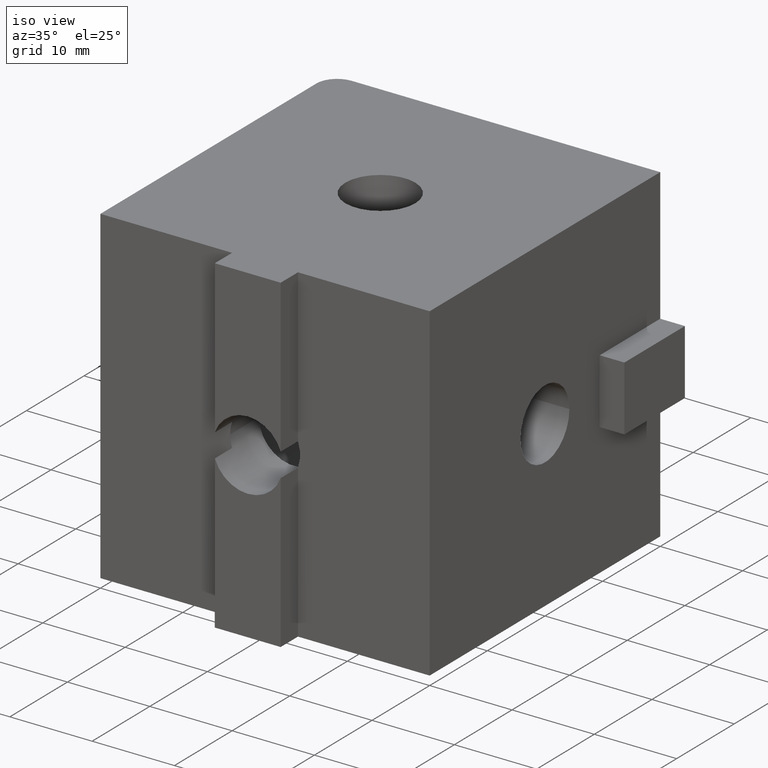
[diagram: clean part render]
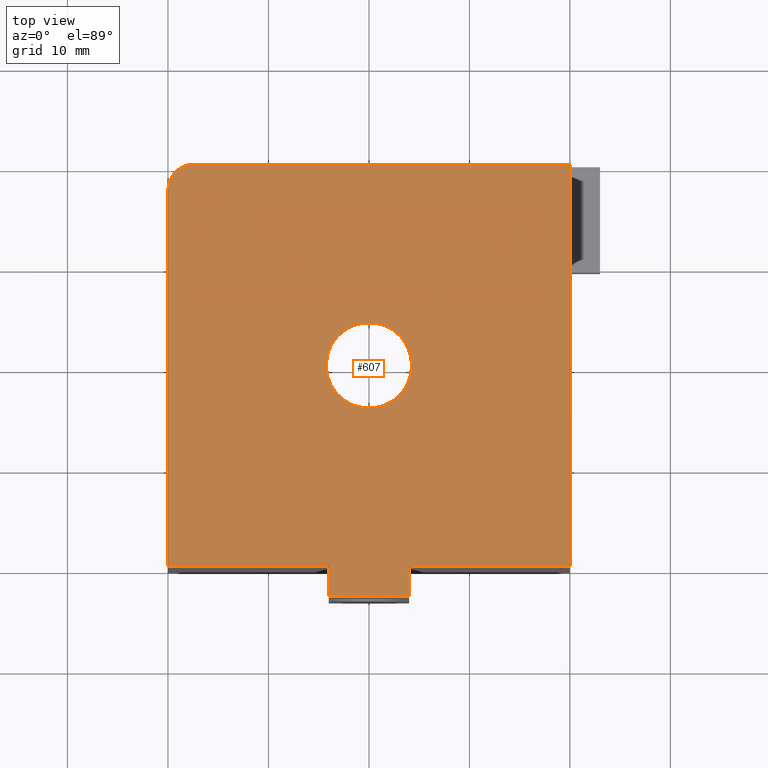
[diagram: tour spotlight — one face highlighted and labeled with its STEP entity id]
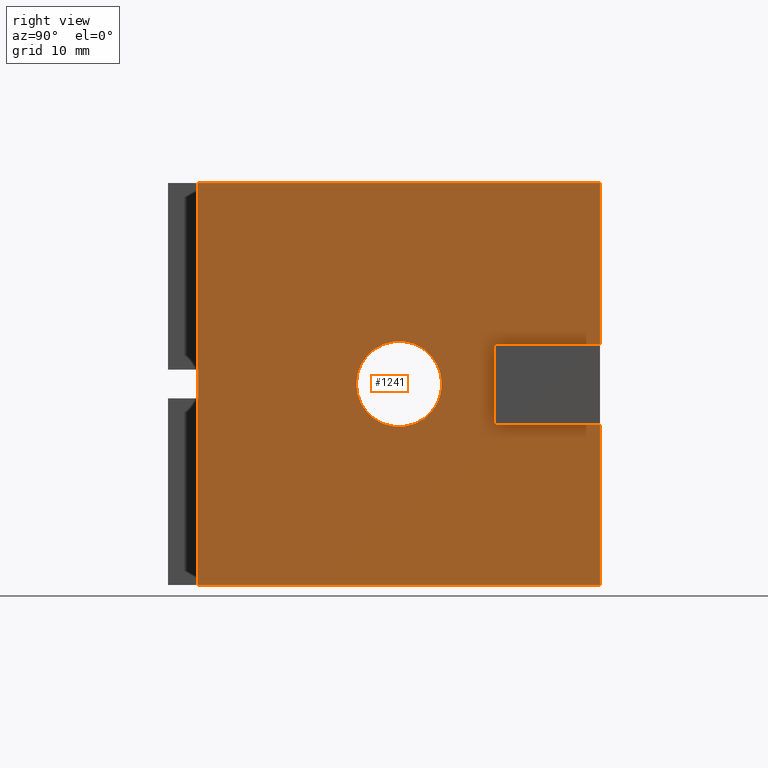
[diagram: tour spotlight — one face highlighted and labeled with its STEP entity id]
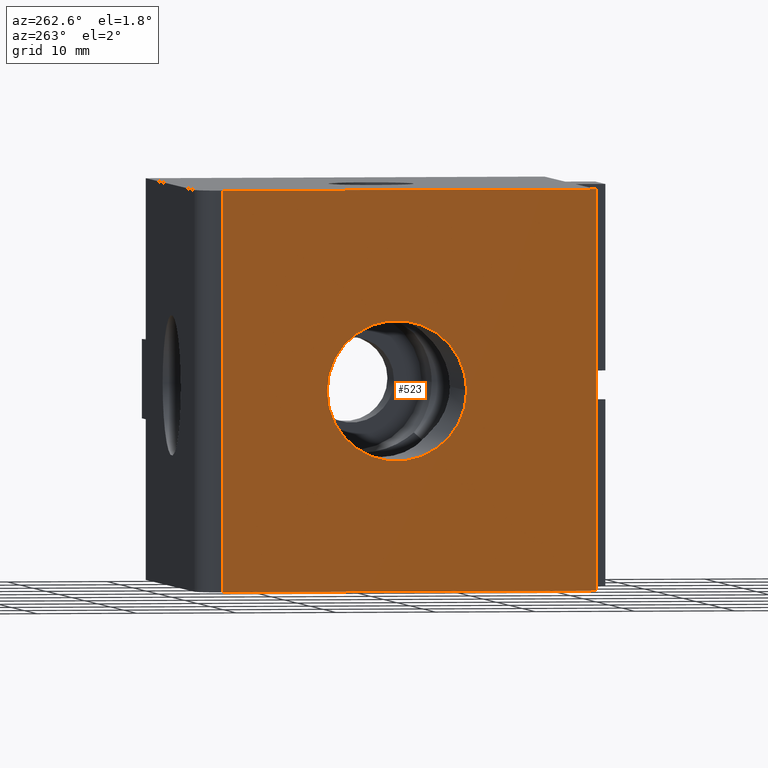
[diagram: tour spotlight — one face highlighted and labeled with its STEP entity id]
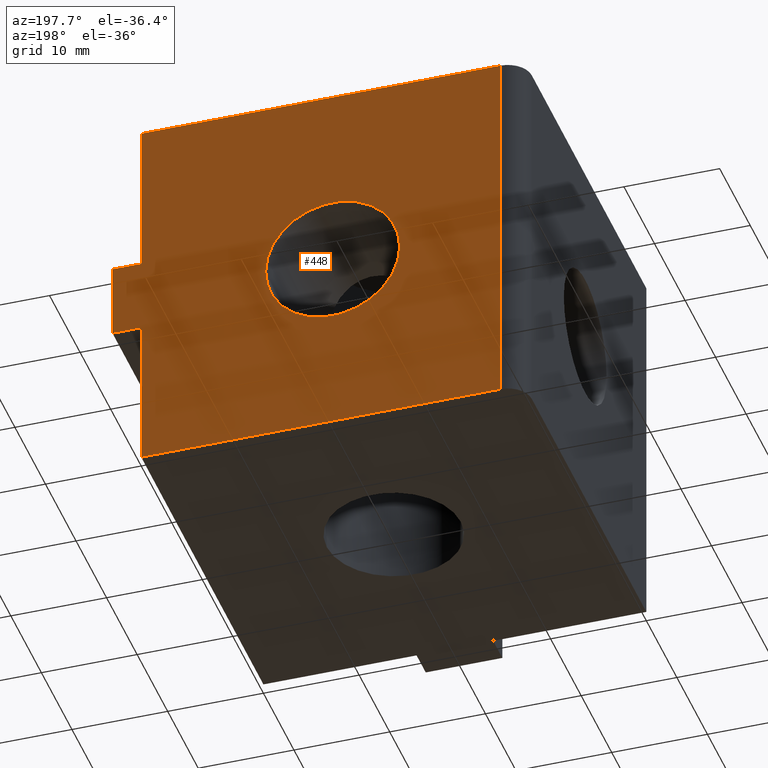
[diagram: tour spotlight — one face highlighted and labeled with its STEP entity id]
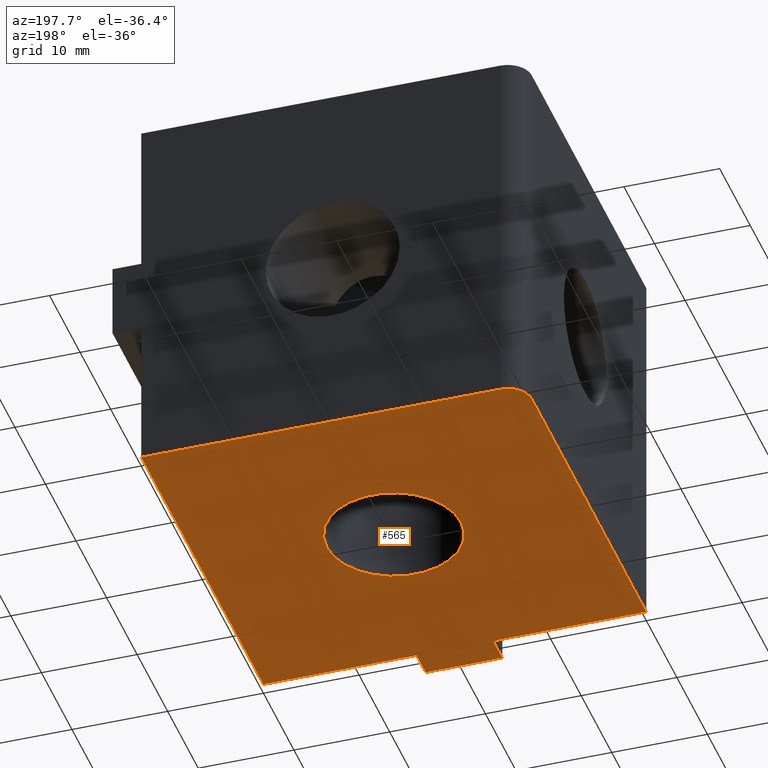
[diagram: tour spotlight — one face highlighted and labeled with its STEP entity id]
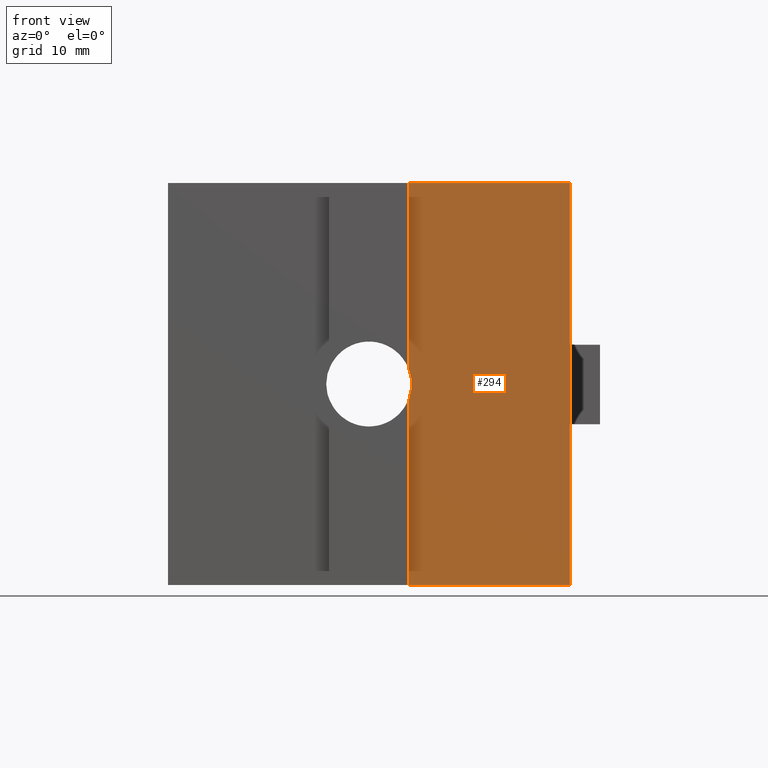
[diagram: tour spotlight — one face highlighted and labeled with its STEP entity id]
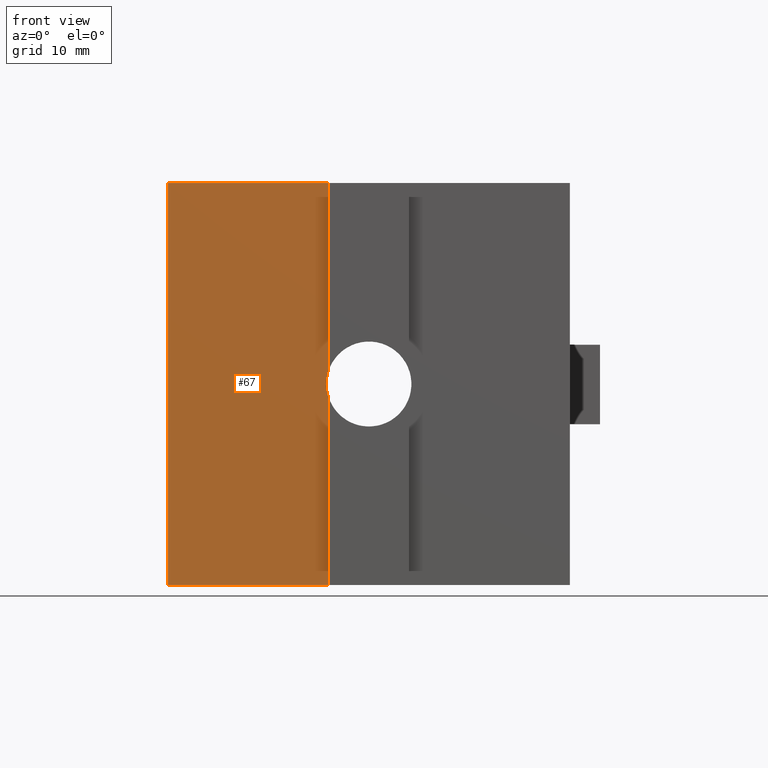
[diagram: tour spotlight — one face highlighted and labeled with its STEP entity id]
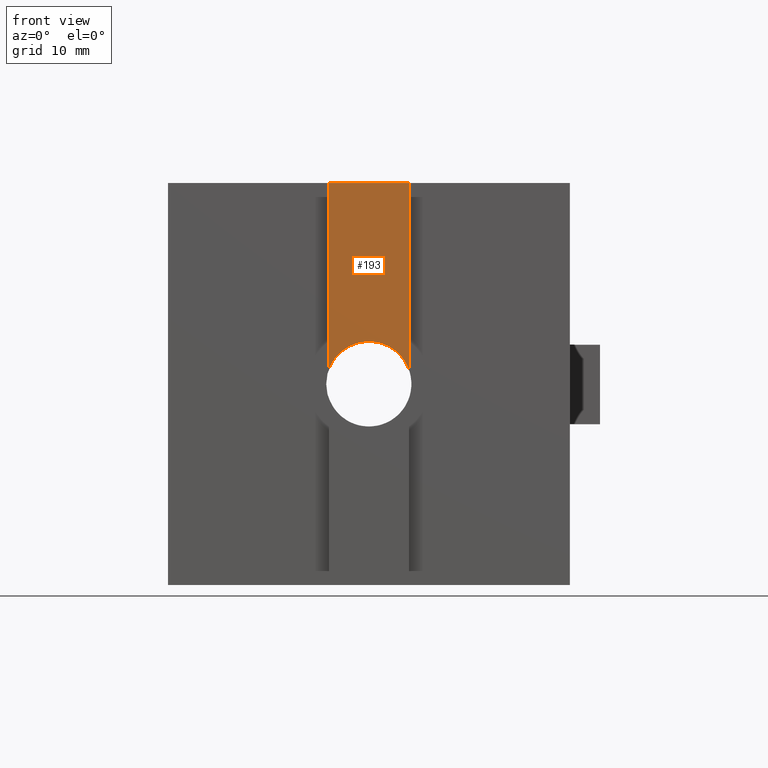
[diagram: tour spotlight — one face highlighted and labeled with its STEP entity id]
A machine part: a face-by-face anatomy tour. The part has 30 B-rep faces; the first image is the clean iso view, then the 8 largest visible faces are spotlighted one at a time (largest first), each with its STEP entity span.

Face 1 — top view, entity #607. In plain terms, the highlighted planar face has unit normal (0, 0, 1).
Definition (entity closure, byte-faithful):
#43=CARTESIAN_POINT('',(-3.999999111984067,-20.0,39.999989209840351));
#44=VERTEX_POINT('',#43);
#51=CARTESIAN_POINT('',(-19.999995559920137,-20.000000000000057,39.999989209840351));
#52=VERTEX_POINT('',#51);
#53=CARTESIAN_POINT('',(-19.999995559920137,-20.000000000000057,39.999989209840351));
#54=DIRECTION('',(1.0,0.0,0.0));
#55=VECTOR('',#54,15.999996447936070);
#56=LINE('',#53,#55);
#57=EDGE_CURVE('',#52,#44,#56,.T.);
#113=CARTESIAN_POINT('',(-3.999999111984067,-22.999999333988058,39.999989209840351));
#114=VERTEX_POINT('',#113);
#121=CARTESIAN_POINT('',(-3.999999111984067,-20.0,39.999989209840351));
#122=DIRECTION('',(0.0,-1.0,0.0));
#123=VECTOR('',#122,2.999999333988058);
#124=LINE('',#121,#123);
#125=EDGE_CURVE('',#44,#114,#124,.T.);
#177=CARTESIAN_POINT('',(3.999999111983840,-22.999999333988058,39.999989209840351));
#178=VERTEX_POINT('',#177);
#185=CARTESIAN_POINT('',(-3.999999111984067,-22.999999333988058,39.999989209840351));
#186=DIRECTION('',(1.0,0.0,0.0));
#187=VECTOR('',#186,7.999998223967907);
#188=LINE('',#185,#187);
#189=EDGE_CURVE('',#114,#178,#188,.T.);
#239=CARTESIAN_POINT('',(3.999999111983840,-20.000000000000057,39.999989209840351));
#240=VERTEX_POINT('',#239);
#247=CARTESIAN_POINT('',(3.999999111983840,-22.999999333988058,39.999989209840351));
#248=DIRECTION('',(0.0,1.0,0.0));
#249=VECTOR('',#248,2.999999333988001);
#250=LINE('',#247,#249);
#251=EDGE_CURVE('',#178,#240,#250,.T.);
#277=CARTESIAN_POINT('',(19.999993649920242,-20.000000000000057,39.999989209840351));
#278=VERTEX_POINT('',#277);
#285=CARTESIAN_POINT('',(3.999999111983840,-20.000000000000057,39.999989209840351));
#286=DIRECTION('',(1.0,0.0,0.0));
#287=VECTOR('',#286,15.999994537936402);
#288=LINE('',#285,#287);
#289=EDGE_CURVE('',#240,#278,#288,.T.);
#373=CARTESIAN_POINT('',(-17.499996114930269,19.999991119839819,39.999989209840351));
#374=VERTEX_POINT('',#373);
#381=CARTESIAN_POINT('',(19.999993649920242,19.999991119839819,39.999989209840351));
#382=VERTEX_POINT('',#381);
#383=CARTESIAN_POINT('',(19.999993649920242,19.999991119839819,39.999989209840351));
#384=DIRECTION('',(-1.0,0.0,0.0));
#385=VECTOR('',#384,37.499989764850511);
#386=LINE('',#383,#385);
#387=EDGE_CURVE('',#382,#374,#386,.T.);
#463=CARTESIAN_POINT('',(-19.999995559920137,17.499991674849952,39.999989209840351));
#464=VERTEX_POINT('',#463);
#471=CARTESIAN_POINT('',(-17.499996114930269,17.499991674849952,39.999989209840351));
#472=DIRECTION('',(0.0,0.0,1.0));
#473=DIRECTION('',(0.0,1.0,0.0));
#474=AXIS2_PLACEMENT_3D('',#471,#472,#473);
#475=CIRCLE('',#474,2.499999444989868);
#476=EDGE_CURVE('',#374,#464,#475,.T.);
#488=CARTESIAN_POINT('',(-19.999995559920137,17.499991674849952,39.999989209840351));
#489=DIRECTION('',(0.0,-1.0,0.0));
#490=VECTOR('',#489,37.499991674850008);
#491=LINE('',#488,#490);
#492=EDGE_CURVE('',#464,#52,#491,.T.);
#566=CARTESIAN_POINT('',(-24.299999139155716,-27.300003104209154,39.999989209840351));
#567=DIRECTION('',(0.0,0.0,1.0));
#568=DIRECTION('',(1.0,0.0,0.0));
#569=AXIS2_PLACEMENT_3D('',#566,#567,#568);
#570=PLANE('',#569);
#571=ORIENTED_EDGE('',*,*,#57,.T.);
#572=ORIENTED_EDGE('',*,*,#125,.T.);
#573=ORIENTED_EDGE('',*,*,#189,.T.);
#574=ORIENTED_EDGE('',*,*,#251,.T.);
#575=ORIENTED_EDGE('',*,*,#289,.T.);
#576=CARTESIAN_POINT('',(19.999993649920242,-20.000000000000057,39.999989209840351));
#577=DIRECTION('',(0.0,1.0,0.0));
#578=VECTOR('',#577,39.999991119839876);
#579=LINE('',#576,#578);
#580=EDGE_CURVE('',#278,#382,#579,.T.);
#581=ORIENTED_EDGE('',*,*,#580,.T.);
#582=ORIENTED_EDGE('',*,*,#387,.T.);
#583=ORIENTED_EDGE('',*,*,#476,.T.);
#584=ORIENTED_EDGE('',*,*,#492,.T.);
#585=EDGE_LOOP('',(#571,#572,#573,#574,#575,#581,#582,#583,#584));
#586=FACE_OUTER_BOUND('',#585,.T.);
#587=CARTESIAN_POINT('',(4.249999056483006,0.0,39.999989209840351));
#588=VERTEX_POINT('',#587);
#589=CARTESIAN_POINT('',(-4.249999056483006,0.0,39.999989209840351));
#590=VERTEX_POINT('',#589);
#591=CARTESIAN_POINT('',(0.0,0.0,39.999989209840351));
#592=DIRECTION('',(0.0,0.0,-1.0));
#593=DIRECTION('',(1.0,0.0,0.0));
#594=AXIS2_PLACEMENT_3D('',#591,#592,#593);
#595=CIRCLE('',#594,4.249999056483006);
#596=EDGE_CURVE('',#588,#590,#595,.T.);
#597=ORIENTED_EDGE('',*,*,#596,.T.);
#598=CARTESIAN_POINT('',(0.0,0.0,39.999989209840351));
#599=DIRECTION('',(0.0,0.0,-1.0));
#600=DIRECTION('',(1.0,0.0,0.0));
#601=AXIS2_PLACEMENT_3D('',#598,#599,#600);
#602=CIRCLE('',#601,4.249999056483006);
#603=EDGE_CURVE('',#590,#588,#602,.T.);
#604=ORIENTED_EDGE('',*,*,#603,.T.);
#605=EDGE_LOOP('',(#597,#604));
#606=FACE_BOUND('',#605,.T.);
#607=ADVANCED_FACE('',(#586,#606),#570,.T.);

Face 2 — right view, entity #1241. In plain terms, the highlighted planar face has unit normal (1, 0, 0).
Definition (entity closure, byte-faithful):
#269=CARTESIAN_POINT('',(19.999993649920242,-20.000000000000057,0.0));
#270=VERTEX_POINT('',#269);
#277=CARTESIAN_POINT('',(19.999993649920242,-20.000000000000057,39.999989209840351));
#278=VERTEX_POINT('',#277);
#279=CARTESIAN_POINT('',(19.999993649920242,-20.000000000000057,0.0));
#280=DIRECTION('',(0.0,0.0,1.0));
#281=VECTOR('',#280,39.999989209840351);
#282=LINE('',#279,#281);
#283=EDGE_CURVE('',#270,#278,#282,.T.);
#300=CARTESIAN_POINT('',(19.999993649920270,9.499993450882130,15.999996447936155));
#301=VERTEX_POINT('',#300);
#302=CARTESIAN_POINT('',(19.999993649920270,9.499993450882130,23.902821791854763));
#303=VERTEX_POINT('',#302);
#304=CARTESIAN_POINT('',(19.999993649920270,9.499993450882130,15.999996447936155));
#305=DIRECTION('',(0.0,0.0,1.0));
#306=VECTOR('',#305,7.902825343918607);
#307=LINE('',#304,#306);
#308=EDGE_CURVE('',#301,#303,#307,.T.);
#381=CARTESIAN_POINT('',(19.999993649920242,19.999991119839819,39.999989209840351));
#382=VERTEX_POINT('',#381);
#389=CARTESIAN_POINT('',(19.999993649920242,19.999991119839819,23.902821791854763));
#390=VERTEX_POINT('',#389);
#391=CARTESIAN_POINT('',(19.999993649920242,19.999991119839819,39.999989209840351));
#392=DIRECTION('',(0.0,0.0,-1.0));
#393=VECTOR('',#392,16.097167417985588);
#394=LINE('',#391,#393);
#395=EDGE_CURVE('',#382,#390,#394,.T.);
#404=CARTESIAN_POINT('',(19.999993649920413,19.999991119839819,15.999996447936155));
#405=VERTEX_POINT('',#404);
#412=CARTESIAN_POINT('',(19.999993649920413,19.999991119839819,0.0));
#413=VERTEX_POINT('',#412);
#414=CARTESIAN_POINT('',(19.999993649920413,19.999991119839819,0.0));
#415=DIRECTION('',(0.0,0.0,1.0));
#416=VECTOR('',#415,15.999996447936155);
#417=LINE('',#414,#416);
#418=EDGE_CURVE('',#413,#405,#417,.T.);
#532=CARTESIAN_POINT('',(19.999993649920242,-20.000000000000057,0.0));
#533=DIRECTION('',(0.0,1.0,0.0));
#534=VECTOR('',#533,39.999991119839876);
#535=LINE('',#532,#534);
#536=EDGE_CURVE('',#270,#413,#535,.T.);
#576=CARTESIAN_POINT('',(19.999993649920242,-20.000000000000057,39.999989209840351));
#577=DIRECTION('',(0.0,1.0,0.0));
#578=VECTOR('',#577,39.999991119839876);
#579=LINE('',#576,#578);
#580=EDGE_CURVE('',#278,#382,#579,.T.);
#655=CARTESIAN_POINT('',(19.999993649920270,4.249999056482949,19.999995559920002));
#656=VERTEX_POINT('',#655);
#682=CARTESIAN_POINT('',(19.999993649920267,-4.249999056483063,19.999995559920002));
#683=VERTEX_POINT('',#682);
#684=CARTESIAN_POINT('',(19.999993649920270,-5.684342E-014,19.999995559920002));
#685=DIRECTION('',(-1.0,9.634480E-016,0.0));
#686=DIRECTION('',(9.634480E-016,1.0,0.0));
#687=AXIS2_PLACEMENT_3D('',#684,#685,#686);
#688=CIRCLE('',#687,4.249999056483006);
#689=EDGE_CURVE('',#683,#656,#688,.T.);
#691=CARTESIAN_POINT('',(19.999993649920270,-5.684342E-014,19.999995559920002));
#692=DIRECTION('',(-1.0,9.634480E-016,0.0));
#693=DIRECTION('',(9.634480E-016,1.0,0.0));
#694=AXIS2_PLACEMENT_3D('',#691,#692,#693);
#695=CIRCLE('',#694,4.249999056483006);
#696=EDGE_CURVE('',#656,#683,#695,.T.);
#1196=CARTESIAN_POINT('',(19.999993649920242,9.499993450882130,23.902821791854763));
#1197=DIRECTION('',(0.0,1.0,0.0));
#1198=VECTOR('',#1197,10.499997668957690);
#1199=LINE('',#1196,#1198);
#1200=EDGE_CURVE('',#303,#390,#1199,.T.);
#1210=CARTESIAN_POINT('',(19.999993649920413,9.499993450882130,15.999996447936155));
#1211=DIRECTION('',(0.0,1.0,0.0));
#1212=VECTOR('',#1211,10.499997668957690);
#1213=LINE('',#1210,#1212);
#1214=EDGE_CURVE('',#301,#405,#1213,.T.);
#1222=CARTESIAN_POINT('',(19.999993649920242,-20.001345639939387,-0.001349576856228));
#1223=DIRECTION('',(1.0,0.0,0.0));
#1224=DIRECTION('',(0.0,1.0,0.0));
#1225=AXIS2_PLACEMENT_3D('',#1222,#1223,#1224);
#1226=PLANE('',#1225);
#1227=ORIENTED_EDGE('',*,*,#418,.T.);
#1228=ORIENTED_EDGE('',*,*,#1214,.F.);
#1229=ORIENTED_EDGE('',*,*,#308,.T.);
#1230=ORIENTED_EDGE('',*,*,#1200,.T.);
#1231=ORIENTED_EDGE('',*,*,#395,.F.);
#1232=ORIENTED_EDGE('',*,*,#580,.F.);
#1233=ORIENTED_EDGE('',*,*,#283,.F.);
#1234=ORIENTED_EDGE('',*,*,#536,.T.);
#1235=EDGE_LOOP('',(#1227,#1228,#1229,#1230,#1231,#1232,#1233,#1234));
#1236=FACE_OUTER_BOUND('',#1235,.T.);
#1237=ORIENTED_EDGE('',*,*,#696,.T.);
#1238=ORIENTED_EDGE('',*,*,#689,.T.);
#1239=EDGE_LOOP('',(#1237,#1238));
#1240=FACE_BOUND('',#1239,.T.);
#1241=ADVANCED_FACE('',(#1236,#1240),#1226,.T.);

Face 3 — auxiliary view, entity #523. In plain terms, the highlighted planar face has unit normal (-1, 0, 0).
Definition (entity closure, byte-faithful):
#7=CARTESIAN_POINT('',(-19.999995559920137,-20.000000000000057,0.0));
#8=VERTEX_POINT('',#7);
#51=CARTESIAN_POINT('',(-19.999995559920137,-20.000000000000057,39.999989209840351));
#52=VERTEX_POINT('',#51);
#59=CARTESIAN_POINT('',(-19.999995559920137,-20.000000000000057,0.0));
#60=DIRECTION('',(0.0,0.0,1.0));
#61=VECTOR('',#60,39.999989209840351);
#62=LINE('',#59,#61);
#63=EDGE_CURVE('',#8,#52,#62,.T.);
#454=CARTESIAN_POINT('',(-19.999995559920137,17.499991674849952,0.0));
#455=VERTEX_POINT('',#454);
#463=CARTESIAN_POINT('',(-19.999995559920137,17.499991674849952,39.999989209840351));
#464=VERTEX_POINT('',#463);
#465=CARTESIAN_POINT('',(-19.999995559920137,17.499991674849952,0.0));
#466=DIRECTION('',(0.0,0.0,1.0));
#467=VECTOR('',#466,39.999989209840351);
#468=LINE('',#465,#467);
#469=EDGE_CURVE('',#455,#464,#468,.T.);
#482=CARTESIAN_POINT('',(-19.999995559920137,17.499991674849952,0.0));
#483=DIRECTION('',(-1.0,0.0,0.0));
#484=DIRECTION('',(0.0,-1.0,0.0));
#485=AXIS2_PLACEMENT_3D('',#482,#483,#484);
#486=PLANE('',#485);
#487=ORIENTED_EDGE('',*,*,#63,.T.);
#488=CARTESIAN_POINT('',(-19.999995559920137,17.499991674849952,39.999989209840351));
#489=DIRECTION('',(0.0,-1.0,0.0));
#490=VECTOR('',#489,37.499991674850008);
#491=LINE('',#488,#490);
#492=EDGE_CURVE('',#464,#52,#491,.T.);
#493=ORIENTED_EDGE('',*,*,#492,.F.);
#494=ORIENTED_EDGE('',*,*,#469,.F.);
#495=CARTESIAN_POINT('',(-19.999995559920137,17.499991674849952,0.0));
#496=DIRECTION('',(0.0,-1.0,0.0));
#497=VECTOR('',#496,37.499991674850008);
#498=LINE('',#495,#497);
#499=EDGE_CURVE('',#455,#8,#498,.T.);
#500=ORIENTED_EDGE('',*,*,#499,.T.);
#501=EDGE_LOOP('',(#487,#493,#494,#500));
#502=FACE_OUTER_BOUND('',#501,.T.);
#503=CARTESIAN_POINT('',(-19.999995559920137,6.999996535972421,19.999995559920002));
#504=VERTEX_POINT('',#503);
#505=CARTESIAN_POINT('',(-19.999995559920137,-6.999996535972485,19.999995559920002));
#506=VERTEX_POINT('',#505);
#507=CARTESIAN_POINT('',(-19.999995559920137,-2.842171E-014,19.999995559920002));
#508=DIRECTION('',(-1.0,0.0,0.0));
#509=DIRECTION('',(0.0,-1.0,0.0));
#510=AXIS2_PLACEMENT_3D('',#507,#508,#509);
#511=CIRCLE('',#510,6.999996535972450);
#512=EDGE_CURVE('',#504,#506,#511,.T.);
#513=ORIENTED_EDGE('',*,*,#512,.F.);
#514=CARTESIAN_POINT('',(-19.999995559920137,-2.842171E-014,19.999995559920002));
#515=DIRECTION('',(-1.0,0.0,0.0));
#516=DIRECTION('',(0.0,-1.0,0.0));
#517=AXIS2_PLACEMENT_3D('',#514,#515,#516);
#518=CIRCLE('',#517,6.999996535972450);
#519=EDGE_CURVE('',#506,#504,#518,.T.);
#520=ORIENTED_EDGE('',*,*,#519,.F.);
#521=EDGE_LOOP('',(#513,#520));
#522=FACE_BOUND('',#521,.T.);
#523=ADVANCED_FACE('',(#502,#522),#486,.T.);

Face 4 — auxiliary view, entity #448. In plain terms, the highlighted planar face has unit normal (0, 1, 0).
Definition (entity closure, byte-faithful):
#340=CARTESIAN_POINT('',(22.999992983908470,19.999991119839819,15.999996447936155));
#341=VERTEX_POINT('',#340);
#348=CARTESIAN_POINT('',(22.999992983908470,19.999991119839819,23.902821791854763));
#349=VERTEX_POINT('',#348);
#350=CARTESIAN_POINT('',(22.999992983908470,19.999991119839819,15.999996447936155));
#351=DIRECTION('',(0.0,0.0,1.0));
#352=VECTOR('',#351,7.902825343918607);
#353=LINE('',#350,#352);
#354=EDGE_CURVE('',#341,#349,#353,.T.);
#366=CARTESIAN_POINT('',(22.999992983908470,19.999991119839819,0.0));
#367=DIRECTION('',(0.0,1.0,0.0));
#368=DIRECTION('',(-1.0,0.0,0.0));
#369=AXIS2_PLACEMENT_3D('',#366,#367,#368);
#370=PLANE('',#369);
#371=CARTESIAN_POINT('',(-17.499996114930269,19.999991119839819,0.0));
#372=VERTEX_POINT('',#371);
#373=CARTESIAN_POINT('',(-17.499996114930269,19.999991119839819,39.999989209840351));
#374=VERTEX_POINT('',#373);
#375=CARTESIAN_POINT('',(-17.499996114930269,19.999991119839819,0.0));
#376=DIRECTION('',(0.0,0.0,1.0));
#377=VECTOR('',#376,39.999989209840351);
#378=LINE('',#375,#377);
#379=EDGE_CURVE('',#372,#374,#378,.T.);
#380=ORIENTED_EDGE('',*,*,#379,.T.);
#381=CARTESIAN_POINT('',(19.999993649920242,19.999991119839819,39.999989209840351));
#382=VERTEX_POINT('',#381);
#383=CARTESIAN_POINT('',(19.999993649920242,19.999991119839819,39.999989209840351));
#384=DIRECTION('',(-1.0,0.0,0.0));
#385=VECTOR('',#384,37.499989764850511);
#386=LINE('',#383,#385);
#387=EDGE_CURVE('',#382,#374,#386,.T.);
#388=ORIENTED_EDGE('',*,*,#387,.F.);
#389=CARTESIAN_POINT('',(19.999993649920242,19.999991119839819,23.902821791854763));
#390=VERTEX_POINT('',#389);
#391=CARTESIAN_POINT('',(19.999993649920242,19.999991119839819,39.999989209840351));
#392=DIRECTION('',(0.0,0.0,-1.0));
#393=VECTOR('',#392,16.097167417985588);
#394=LINE('',#391,#393);
#395=EDGE_CURVE('',#382,#390,#394,.T.);
#396=ORIENTED_EDGE('',*,*,#395,.T.);
#397=CARTESIAN_POINT('',(22.999992983908470,19.999991119839819,23.902821791854763));
#398=DIRECTION('',(-1.0,0.0,0.0));
#399=VECTOR('',#398,2.999999333988228);
#400=LINE('',#397,#399);
#401=EDGE_CURVE('',#349,#390,#400,.T.);
#402=ORIENTED_EDGE('',*,*,#401,.F.);
#403=ORIENTED_EDGE('',*,*,#354,.F.);
#404=CARTESIAN_POINT('',(19.999993649920413,19.999991119839819,15.999996447936155));
#405=VERTEX_POINT('',#404);
#406=CARTESIAN_POINT('',(22.999992983908470,19.999991119839819,15.999996447936155));
#407=DIRECTION('',(-1.0,0.0,0.0));
#408=VECTOR('',#407,2.999999333988058);
#409=LINE('',#406,#408);
#410=EDGE_CURVE('',#341,#405,#409,.T.);
#411=ORIENTED_EDGE('',*,*,#410,.T.);
#412=CARTESIAN_POINT('',(19.999993649920413,19.999991119839819,0.0));
#413=VERTEX_POINT('',#412);
#414=CARTESIAN_POINT('',(19.999993649920413,19.999991119839819,0.0));
#415=DIRECTION('',(0.0,0.0,1.0));
#416=VECTOR('',#415,15.999996447936155);
#417=LINE('',#414,#416);
#418=EDGE_CURVE('',#413,#405,#417,.T.);
#419=ORIENTED_EDGE('',*,*,#418,.F.);
#420=CARTESIAN_POINT('',(19.999993649920413,19.999991119839819,0.0));
#421=DIRECTION('',(-1.0,0.0,0.0));
#422=VECTOR('',#421,37.499989764850682);
#423=LINE('',#420,#422);
#424=EDGE_CURVE('',#413,#372,#423,.T.);
#425=ORIENTED_EDGE('',*,*,#424,.T.);
#426=EDGE_LOOP('',(#380,#388,#396,#402,#403,#411,#419,#425));
#427=FACE_OUTER_BOUND('',#426,.T.);
#428=CARTESIAN_POINT('',(6.999996535972450,19.999991119839819,19.999995559920080));
#429=VERTEX_POINT('',#428);
#430=CARTESIAN_POINT('',(-6.999996535972457,19.999991119839819,19.999995559920080));
#431=VERTEX_POINT('',#430);
#432=CARTESIAN_POINT('',(0.0,19.999991119839819,19.999995559920080));
#433=DIRECTION('',(0.0,1.0,0.0));
#434=DIRECTION('',(-1.0,0.0,0.0));
#435=AXIS2_PLACEMENT_3D('',#432,#433,#434);
#436=CIRCLE('',#435,6.999996535972450);
#437=EDGE_CURVE('',#429,#431,#436,.T.);
#438=ORIENTED_EDGE('',*,*,#437,.F.);
#439=CARTESIAN_POINT('',(0.0,19.999991119839819,19.999995559920080));
#440=DIRECTION('',(0.0,1.0,0.0));
#441=DIRECTION('',(-1.0,0.0,0.0));
#442=AXIS2_PLACEMENT_3D('',#439,#440,#441);
#443=CIRCLE('',#442,6.999996535972450);
#444=EDGE_CURVE('',#431,#429,#443,.T.);
#445=ORIENTED_EDGE('',*,*,#444,.F.);
#446=EDGE_LOOP('',(#438,#445));
#447=FACE_BOUND('',#446,.T.);
#448=ADVANCED_FACE('',(#427,#447),#370,.T.);

Face 5 — auxiliary view, entity #565. In plain terms, the highlighted planar face has unit normal (0, 0, 1).
Definition (entity closure, byte-faithful):
#7=CARTESIAN_POINT('',(-19.999995559920137,-20.000000000000057,0.0));
#8=VERTEX_POINT('',#7);
#9=CARTESIAN_POINT('',(-3.999999111984067,-20.0,0.0));
#10=VERTEX_POINT('',#9);
#11=CARTESIAN_POINT('',(-19.999995559920137,-20.000000000000057,0.0));
#12=DIRECTION('',(1.0,0.0,0.0));
#13=VECTOR('',#12,15.999996447936070);
#14=LINE('',#11,#13);
#15=EDGE_CURVE('',#8,#10,#14,.T.);
#73=CARTESIAN_POINT('',(-3.999999111984067,-22.999999333988058,0.0));
#74=VERTEX_POINT('',#73);
#75=CARTESIAN_POINT('',(-3.999999111984067,-20.0,0.0));
#76=DIRECTION('',(0.0,-1.0,0.0));
#77=VECTOR('',#76,2.999999333988058);
#78=LINE('',#75,#77);
#79=EDGE_CURVE('',#10,#74,#78,.T.);
#135=CARTESIAN_POINT('',(3.999999111983840,-22.999999333988058,0.0));
#136=VERTEX_POINT('',#135);
#137=CARTESIAN_POINT('',(-3.999999111984067,-22.999999333988058,0.0));
#138=DIRECTION('',(1.0,0.0,0.0));
#139=VECTOR('',#138,7.999998223967907);
#140=LINE('',#137,#139);
#141=EDGE_CURVE('',#74,#136,#140,.T.);
#199=CARTESIAN_POINT('',(3.999999111983840,-20.000000000000057,0.0));
#200=VERTEX_POINT('',#199);
#201=CARTESIAN_POINT('',(3.999999111983840,-22.999999333988058,0.0));
#202=DIRECTION('',(0.0,1.0,0.0));
#203=VECTOR('',#202,2.999999333988001);
#204=LINE('',#201,#203);
#205=EDGE_CURVE('',#136,#200,#204,.T.);
#269=CARTESIAN_POINT('',(19.999993649920242,-20.000000000000057,0.0));
#270=VERTEX_POINT('',#269);
#271=CARTESIAN_POINT('',(3.999999111983840,-20.000000000000057,0.0));
#272=DIRECTION('',(1.0,0.0,0.0));
#273=VECTOR('',#272,15.999994537936402);
#274=LINE('',#271,#273);
#275=EDGE_CURVE('',#200,#270,#274,.T.);
#371=CARTESIAN_POINT('',(-17.499996114930269,19.999991119839819,0.0));
#372=VERTEX_POINT('',#371);
#412=CARTESIAN_POINT('',(19.999993649920413,19.999991119839819,0.0));
#413=VERTEX_POINT('',#412);
#420=CARTESIAN_POINT('',(19.999993649920413,19.999991119839819,0.0));
#421=DIRECTION('',(-1.0,0.0,0.0));
#422=VECTOR('',#421,37.499989764850682);
#423=LINE('',#420,#422);
#424=EDGE_CURVE('',#413,#372,#423,.T.);
#454=CARTESIAN_POINT('',(-19.999995559920137,17.499991674849952,0.0));
#455=VERTEX_POINT('',#454);
#456=CARTESIAN_POINT('',(-17.499996114930269,17.499991674849952,0.0));
#457=DIRECTION('',(0.0,0.0,1.0));
#458=DIRECTION('',(0.0,1.0,0.0));
#459=AXIS2_PLACEMENT_3D('',#456,#457,#458);
#460=CIRCLE('',#459,2.499999444989868);
#461=EDGE_CURVE('',#372,#455,#460,.T.);
#495=CARTESIAN_POINT('',(-19.999995559920137,17.499991674849952,0.0));
#496=DIRECTION('',(0.0,-1.0,0.0));
#497=VECTOR('',#496,37.499991674850008);
#498=LINE('',#495,#497);
#499=EDGE_CURVE('',#455,#8,#498,.T.);
#524=CARTESIAN_POINT('',(-24.299999139155716,-27.300003104209154,0.0));
#525=DIRECTION('',(0.0,0.0,1.0));
#526=DIRECTION('',(1.0,0.0,0.0));
#527=AXIS2_PLACEMENT_3D('',#524,#525,#526);
#528=PLANE('',#527);
#529=ORIENTED_EDGE('',*,*,#499,.F.);
#530=ORIENTED_EDGE('',*,*,#461,.F.);
#531=ORIENTED_EDGE('',*,*,#424,.F.);
#532=CARTESIAN_POINT('',(19.999993649920242,-20.000000000000057,0.0));
#533=DIRECTION('',(0.0,1.0,0.0));
#534=VECTOR('',#533,39.999991119839876);
#535=LINE('',#532,#534);
#536=EDGE_CURVE('',#270,#413,#535,.T.);
#537=ORIENTED_EDGE('',*,*,#536,.F.);
#538=ORIENTED_EDGE('',*,*,#275,.F.);
#539=ORIENTED_EDGE('',*,*,#205,.F.);
#540=ORIENTED_EDGE('',*,*,#141,.F.);
#541=ORIENTED_EDGE('',*,*,#79,.F.);
#542=ORIENTED_EDGE('',*,*,#15,.F.);
#543=EDGE_LOOP('',(#529,#530,#531,#537,#538,#539,#540,#541,#542));
#544=FACE_OUTER_BOUND('',#543,.T.);
#545=CARTESIAN_POINT('',(-6.999996535972450,0.0,0.0));
#546=VERTEX_POINT('',#545);
#547=CARTESIAN_POINT('',(6.999996535972457,0.0,0.0));
#548=VERTEX_POINT('',#547);
#549=CARTESIAN_POINT('',(0.0,0.0,0.0));
#550=DIRECTION('',(0.0,0.0,-1.0));
#551=DIRECTION('',(1.0,0.0,0.0));
#552=AXIS2_PLACEMENT_3D('',#549,#550,#551);
#553=CIRCLE('',#552,6.999996535972450);
#554=EDGE_CURVE('',#546,#548,#553,.T.);
#555=ORIENTED_EDGE('',*,*,#554,.F.);
#556=CARTESIAN_POINT('',(0.0,0.0,0.0));
#557=DIRECTION('',(0.0,0.0,-1.0));
#558=DIRECTION('',(1.0,0.0,0.0));
#559=AXIS2_PLACEMENT_3D('',#556,#557,#558);
#560=CIRCLE('',#559,6.999996535972450);
#561=EDGE_CURVE('',#548,#546,#560,.T.);
#562=ORIENTED_EDGE('',*,*,#561,.F.);
#563=EDGE_LOOP('',(#555,#562));
#564=FACE_BOUND('',#563,.T.);
#565=ADVANCED_FACE('',(#544,#564),#528,.F.);

Face 6 — front view, entity #294. In plain terms, the highlighted planar face has unit normal (0, -1, 0).
Definition (entity closure, byte-faithful):
#199=CARTESIAN_POINT('',(3.999999111983840,-20.000000000000057,0.0));
#200=VERTEX_POINT('',#199);
#207=CARTESIAN_POINT('',(3.999999111983840,-20.000000000000057,18.563855217114092));
#208=VERTEX_POINT('',#207);
#209=CARTESIAN_POINT('',(3.999999111983840,-20.000000000000057,0.0));
#210=DIRECTION('',(0.0,0.0,1.0));
#211=VECTOR('',#210,18.563855217114092);
#212=LINE('',#209,#211);
#213=EDGE_CURVE('',#200,#208,#212,.T.);
#231=CARTESIAN_POINT('',(3.999999111983840,-20.000000000000057,21.436135902726068));
#232=VERTEX_POINT('',#231);
#239=CARTESIAN_POINT('',(3.999999111983840,-20.000000000000057,39.999989209840351));
#240=VERTEX_POINT('',#239);
#241=CARTESIAN_POINT('',(3.999999111983840,-20.000000000000057,21.436135902726068));
#242=DIRECTION('',(0.0,0.0,1.0));
#243=VECTOR('',#242,18.563853307114282);
#244=LINE('',#241,#243);
#245=EDGE_CURVE('',#232,#240,#244,.T.);
#256=CARTESIAN_POINT('',(3.999999111983840,-20.000000000000057,0.0));
#257=DIRECTION('',(0.0,-1.0,0.0));
#258=DIRECTION('',(1.0,0.0,0.0));
#259=AXIS2_PLACEMENT_3D('',#256,#257,#258);
#260=PLANE('',#259);
#261=CARTESIAN_POINT('',(0.0,-20.000000000000057,19.999995559920080));
#262=DIRECTION('',(0.0,1.0,0.0));
#263=DIRECTION('',(-1.0,0.0,0.0));
#264=AXIS2_PLACEMENT_3D('',#261,#262,#263);
#265=CIRCLE('',#264,4.249999056483006);
#266=EDGE_CURVE('',#232,#208,#265,.T.);
#267=ORIENTED_EDGE('',*,*,#266,.T.);
#268=ORIENTED_EDGE('',*,*,#213,.F.);
#269=CARTESIAN_POINT('',(19.999993649920242,-20.000000000000057,0.0));
#270=VERTEX_POINT('',#269);
#271=CARTESIAN_POINT('',(3.999999111983840,-20.000000000000057,0.0));
#272=DIRECTION('',(1.0,0.0,0.0));
#273=VECTOR('',#272,15.999994537936402);
#274=LINE('',#271,#273);
#275=EDGE_CURVE('',#200,#270,#274,.T.);
#276=ORIENTED_EDGE('',*,*,#275,.T.);
#277=CARTESIAN_POINT('',(19.999993649920242,-20.000000000000057,39.999989209840351));
#278=VERTEX_POINT('',#277);
#279=CARTESIAN_POINT('',(19.999993649920242,-20.000000000000057,0.0));
#280=DIRECTION('',(0.0,0.0,1.0));
#281=VECTOR('',#280,39.999989209840351);
#282=LINE('',#279,#281);
#283=EDGE_CURVE('',#270,#278,#282,.T.);
#284=ORIENTED_EDGE('',*,*,#283,.T.);
#285=CARTESIAN_POINT('',(3.999999111983840,-20.000000000000057,39.999989209840351));
#286=DIRECTION('',(1.0,0.0,0.0));
#287=VECTOR('',#286,15.999994537936402);
#288=LINE('',#285,#287);
#289=EDGE_CURVE('',#240,#278,#288,.T.);
#290=ORIENTED_EDGE('',*,*,#289,.F.);
#291=ORIENTED_EDGE('',*,*,#245,.F.);
#292=EDGE_LOOP('',(#267,#268,#276,#284,#290,#291));
#293=FACE_OUTER_BOUND('',#292,.T.);
#294=ADVANCED_FACE('',(#293),#260,.T.);

Face 7 — front view, entity #67. In plain terms, the highlighted planar face has unit normal (0, -1, 0).
Definition (entity closure, byte-faithful):
#2=CARTESIAN_POINT('',(-19.999995559920137,-20.000000000000057,0.0));
#3=DIRECTION('',(0.0,-1.0,0.0));
#4=DIRECTION('',(1.0,0.0,0.0));
#5=AXIS2_PLACEMENT_3D('',#2,#3,#4);
#6=PLANE('',#5);
#7=CARTESIAN_POINT('',(-19.999995559920137,-20.000000000000057,0.0));
#8=VERTEX_POINT('',#7);
#9=CARTESIAN_POINT('',(-3.999999111984067,-20.0,0.0));
#10=VERTEX_POINT('',#9);
#11=CARTESIAN_POINT('',(-19.999995559920137,-20.000000000000057,0.0));
#12=DIRECTION('',(1.0,0.0,0.0));
#13=VECTOR('',#12,15.999996447936070);
#14=LINE('',#11,#13);
#15=EDGE_CURVE('',#8,#10,#14,.T.);
#16=ORIENTED_EDGE('',*,*,#15,.T.);
#17=CARTESIAN_POINT('',(-3.999999111984067,-20.0,18.563855217114725));
#18=VERTEX_POINT('',#17);
#19=CARTESIAN_POINT('',(-3.999999111984067,-20.0,0.0));
#20=DIRECTION('',(0.0,0.0,1.0));
#21=VECTOR('',#20,18.563855217114725);
#22=LINE('',#19,#21);
#23=EDGE_CURVE('',#10,#18,#22,.T.);
#24=ORIENTED_EDGE('',*,*,#23,.T.);
#25=CARTESIAN_POINT('',(-4.249999056483006,-20.000000000000057,19.999995559920080));
#26=VERTEX_POINT('',#25);
#27=CARTESIAN_POINT('',(0.0,-20.000000000000057,19.999995559920080));
#28=DIRECTION('',(0.0,1.0,0.0));
#29=DIRECTION('',(-1.0,0.0,0.0));
#30=AXIS2_PLACEMENT_3D('',#27,#28,#29);
#31=CIRCLE('',#30,4.249999056483006);
#32=EDGE_CURVE('',#18,#26,#31,.T.);
#33=ORIENTED_EDGE('',*,*,#32,.T.);
#34=CARTESIAN_POINT('',(-3.999999111984067,-20.0,21.436135902725436));
#35=VERTEX_POINT('',#34);
#36=CARTESIAN_POINT('',(0.0,-20.000000000000057,19.999995559920080));
#37=DIRECTION('',(0.0,1.0,0.0));
#38=DIRECTION('',(-1.0,0.0,0.0));
#39=AXIS2_PLACEMENT_3D('',#36,#37,#38);
#40=CIRCLE('',#39,4.249999056483006);
#41=EDGE_CURVE('',#26,#35,#40,.T.);
#42=ORIENTED_EDGE('',*,*,#41,.T.);
#43=CARTESIAN_POINT('',(-3.999999111984067,-20.0,39.999989209840351));
#44=VERTEX_POINT('',#43);
#45=CARTESIAN_POINT('',(-3.999999111984067,-20.0,21.436135902725436));
#46=DIRECTION('',(0.0,0.0,1.0));
#47=VECTOR('',#46,18.563853307114915);
#48=LINE('',#45,#47);
#49=EDGE_CURVE('',#35,#44,#48,.T.);
#50=ORIENTED_EDGE('',*,*,#49,.T.);
#51=CARTESIAN_POINT('',(-19.999995559920137,-20.000000000000057,39.999989209840351));
#52=VERTEX_POINT('',#51);
#53=CARTESIAN_POINT('',(-19.999995559920137,-20.000000000000057,39.999989209840351));
#54=DIRECTION('',(1.0,0.0,0.0));
#55=VECTOR('',#54,15.999996447936070);
#56=LINE('',#53,#55);
#57=EDGE_CURVE('',#52,#44,#56,.T.);
#58=ORIENTED_EDGE('',*,*,#57,.F.);
#59=CARTESIAN_POINT('',(-19.999995559920137,-20.000000000000057,0.0));
#60=DIRECTION('',(0.0,0.0,1.0));
#61=VECTOR('',#60,39.999989209840351);
#62=LINE('',#59,#61);
#63=EDGE_CURVE('',#8,#52,#62,.T.);
#64=ORIENTED_EDGE('',*,*,#63,.F.);
#65=EDGE_LOOP('',(#16,#24,#33,#42,#50,#58,#64));
#66=FACE_OUTER_BOUND('',#65,.T.);
#67=ADVANCED_FACE('',(#66),#6,.T.);

Face 8 — front view, entity #193. In plain terms, the highlighted planar face has unit normal (0, -1, 0).
Definition (entity closure, byte-faithful):
#105=CARTESIAN_POINT('',(-3.999999111984067,-22.999999333988058,21.436135902725436));
#106=VERTEX_POINT('',#105);
#113=CARTESIAN_POINT('',(-3.999999111984067,-22.999999333988058,39.999989209840351));
#114=VERTEX_POINT('',#113);
#115=CARTESIAN_POINT('',(-3.999999111984067,-22.999999333988058,21.436135902725436));
#116=DIRECTION('',(0.0,0.0,1.0));
#117=VECTOR('',#116,18.563853307114915);
#118=LINE('',#115,#117);
#119=EDGE_CURVE('',#106,#114,#118,.T.);
#162=CARTESIAN_POINT('',(-3.999999111984067,-22.999999333988058,0.0));
#163=DIRECTION('',(0.0,-1.0,0.0));
#164=DIRECTION('',(1.0,0.0,0.0));
#165=AXIS2_PLACEMENT_3D('',#162,#163,#164);
#166=PLANE('',#165);
#167=ORIENTED_EDGE('',*,*,#119,.F.);
#168=CARTESIAN_POINT('',(3.999999111983840,-22.999999333988058,21.436135902726068));
#169=VERTEX_POINT('',#168);
#170=CARTESIAN_POINT('',(0.0,-22.999999333988058,19.999995559920080));
#171=DIRECTION('',(0.0,1.0,0.0));
#172=DIRECTION('',(-1.0,0.0,0.0));
#173=AXIS2_PLACEMENT_3D('',#170,#171,#172);
#174=CIRCLE('',#173,4.249999056483006);
#175=EDGE_CURVE('',#106,#169,#174,.T.);
#176=ORIENTED_EDGE('',*,*,#175,.T.);
#177=CARTESIAN_POINT('',(3.999999111983840,-22.999999333988058,39.999989209840351));
#178=VERTEX_POINT('',#177);
#179=CARTESIAN_POINT('',(3.999999111983840,-22.999999333988058,21.436135902726068));
#180=DIRECTION('',(0.0,0.0,1.0));
#181=VECTOR('',#180,18.563853307114282);
#182=LINE('',#179,#181);
#183=EDGE_CURVE('',#169,#178,#182,.T.);
#184=ORIENTED_EDGE('',*,*,#183,.T.);
#185=CARTESIAN_POINT('',(-3.999999111984067,-22.999999333988058,39.999989209840351));
#186=DIRECTION('',(1.0,0.0,0.0));
#187=VECTOR('',#186,7.999998223967907);
#188=LINE('',#185,#187);
#189=EDGE_CURVE('',#114,#178,#188,.T.);
#190=ORIENTED_EDGE('',*,*,#189,.F.);
#191=EDGE_LOOP('',(#167,#176,#184,#190));
#192=FACE_OUTER_BOUND('',#191,.T.);
#193=ADVANCED_FACE('',(#192),#166,.T.);